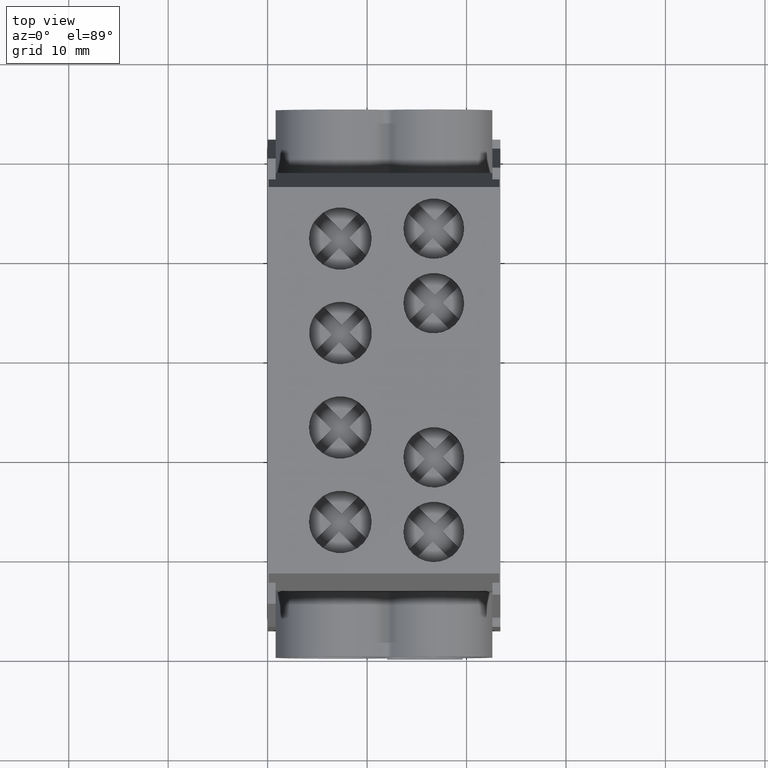
[diagram: clean part render]
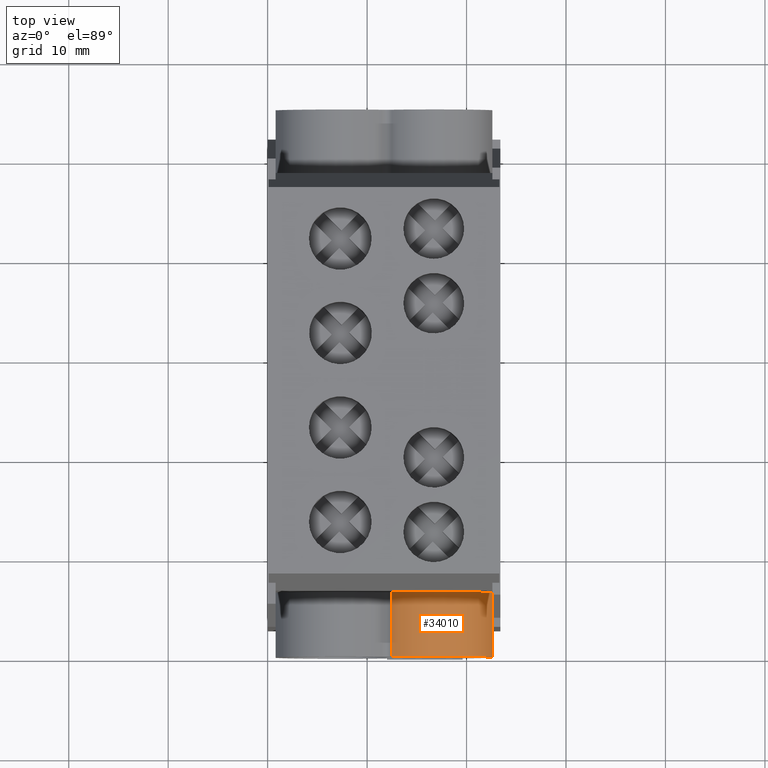
[diagram: same view with one face highlighted and labeled with its STEP entity id]
A machine part, top view. The second image highlights one B-rep face of the part: STEP entity #34010.
In plain terms, the highlighted cylindrical surface (partial cylindrical patch) has radius 6.1 mm, axis along (0, 1, 0).
Its self-contained STEP definition (entity closure, byte-faithful):
#5780=CARTESIAN_POINT('',(10.9,-27.5,9.74919333848297));
#5790=VERTEX_POINT('',#5780);
#5820=CARTESIAN_POINT('',(10.9,-27.5,9.74919333848297));
#5830=DIRECTION('',(0.,1.,0.));
#5840=VECTOR('',#5830,1.);
#5850=LINE('',#5820,#5840);
#5860=CARTESIAN_POINT('',(10.9,-24.5,9.74919333848297));
#5870=VERTEX_POINT('',#5860);
#5880=EDGE_CURVE('',#5790,#5870,#5850,.T.);
#6980=CARTESIAN_POINT('',(0.804163378097342,-27.5,12.6277483038561));
#6990=VERTEX_POINT('',#6980);
#7020=CARTESIAN_POINT('',(5.00000000000001,-27.5,8.19999999999999));
#7030=DIRECTION('',(0.,1.,0.));
#7040=DIRECTION('',(0.,0.,1.));
#7050=AXIS2_PLACEMENT_3D('',#7020,#7030,#7040);
#7060=CIRCLE('',#7050,6.1);
#7070=EDGE_CURVE('',#6990,#5790,#7060,.T.);
#10980=CARTESIAN_POINT('',(10.9,-21.,9.74919333848297));
#10990=VERTEX_POINT('',#10980);
#11020=CARTESIAN_POINT('',(5.00000000000001,-21.,8.19999999999999));
#11030=DIRECTION('',(0.,1.,0.));
#11040=DIRECTION('',(0.,0.,1.));
#11050=AXIS2_PLACEMENT_3D('',#11020,#11030,#11040);
#11060=CIRCLE('',#11050,6.1);
#11070=CARTESIAN_POINT('',(0.804163378097342,-21.,12.6277483038561));
#11080=VERTEX_POINT('',#11070);
#11090=EDGE_CURVE('',#11080,#10990,#11060,.T.);
#33790=CARTESIAN_POINT('',(5.00000000000001,-27.5,8.19999999999999));
#33800=DIRECTION('',(0.,1.,0.));
#33810=DIRECTION('',(0.,0.,1.));
#33820=AXIS2_PLACEMENT_3D('',#33790,#33800,#33810);
#33830=CYLINDRICAL_SURFACE('',#33820,6.1);
#33840=ORIENTED_EDGE('',*,*,#11090,.F.);
#33850=CARTESIAN_POINT('',(10.9,-27.5222000000011,9.74919333848297));
#33860=DIRECTION('',(0.,1.,0.));
#33870=VECTOR('',#33860,1.);
#33880=LINE('',#33850,#33870);
#33890=EDGE_CURVE('',#5870,#10990,#33880,.T.);
#33900=ORIENTED_EDGE('',*,*,#33890,.T.);
#33910=ORIENTED_EDGE('',*,*,#5880,.T.);
#33920=ORIENTED_EDGE('',*,*,#7070,.T.);
#33930=CARTESIAN_POINT('',(0.804163378097342,-27.5,12.6277483038561));
#33940=DIRECTION('',(0.,1.,0.));
#33950=VECTOR('',#33940,1.);
#33960=LINE('',#33930,#33950);
#33970=EDGE_CURVE('',#6990,#11080,#33960,.T.);
#33980=ORIENTED_EDGE('',*,*,#33970,.F.);
#33990=EDGE_LOOP('',(#33980,#33920,#33910,#33900,#33840));
#34000=FACE_OUTER_BOUND('',#33990,.T.);
#34010=ADVANCED_FACE('',(#34000),#33830,.T.);